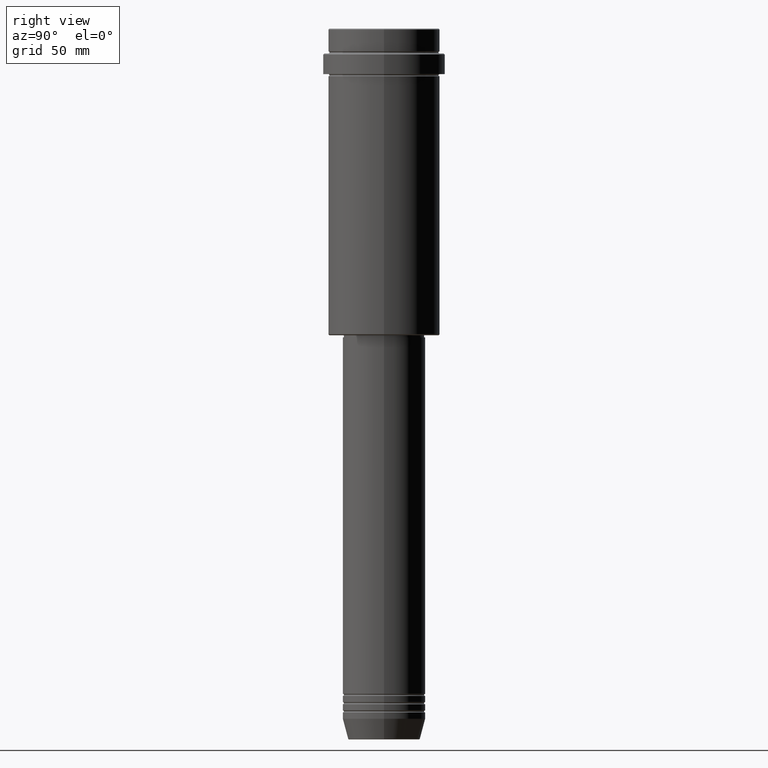
[diagram: clean part render]
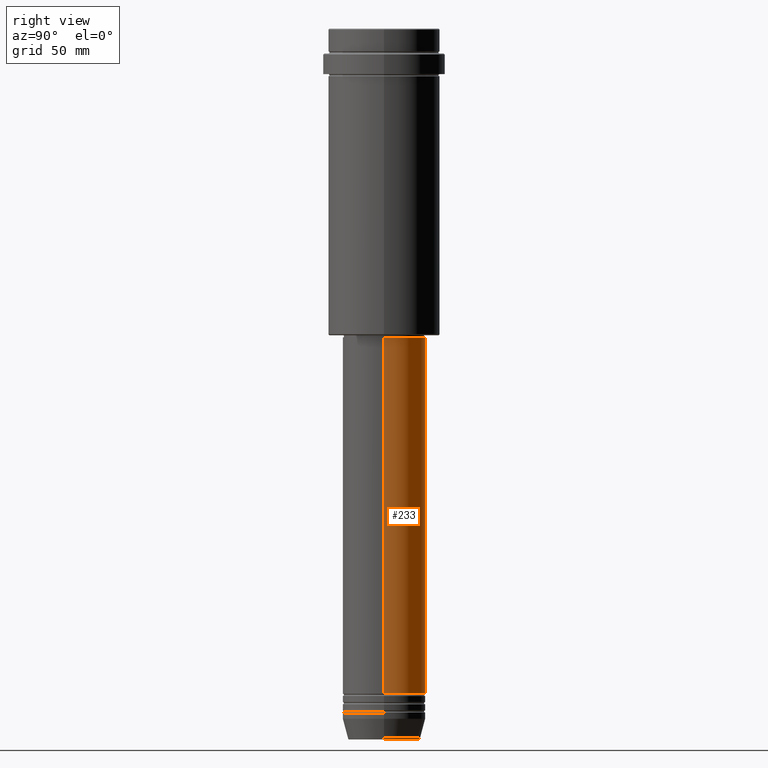
[diagram: same view with one face highlighted and labeled with its STEP entity id]
A machine part, right view. The second image highlights one B-rep face of the part: STEP entity #233.
In plain terms, the highlighted cylindrical surface (partial cylindrical patch) has radius 20 mm, axis along (-0, -0, 1).
Its self-contained STEP definition (entity closure, byte-faithful):
#58 = VERTEX_POINT ( 'NONE', #678 ) ;
#85 = FACE_OUTER_BOUND ( 'NONE', #861, .T. ) ;
#90 = VERTEX_POINT ( 'NONE', #1364 ) ;
#106 = DIRECTION ( 'NONE',  ( -0.000000000000000000, -0.000000000000000000, 1.000000000000000000 ) ) ;
#133 = VECTOR ( 'NONE', #818, 1000.000000000000000 ) ;
#219 = EDGE_CURVE ( 'NONE', #785, #748, #269, .T. ) ;
#233 = ADVANCED_FACE ( 'NONE', ( #85 ), #1296, .T. ) ;
#269 = CIRCLE ( 'NONE', #686, 20.00000000000000000 ) ;
#303 = EDGE_CURVE ( 'NONE', #58, #748, #1362, .T. ) ;
#355 = DIRECTION ( 'NONE',  ( -0.000000000000000000, -0.000000000000000000, 1.000000000000000000 ) ) ;
#397 = DIRECTION ( 'NONE',  ( -0.000000000000000000, -0.000000000000000000, 1.000000000000000000 ) ) ;
#427 = DIRECTION ( 'NONE',  ( 1.000000000000000000, 0.000000000000000000, 0.000000000000000000 ) ) ;
#449 = CARTESIAN_POINT ( 'NONE',  ( 20.00000000000000000, 0.000000000000000000, -148.9999999999999432 ) ) ;
#502 = ORIENTED_EDGE ( 'NONE', *, *, #1409, .F. ) ;
#541 = AXIS2_PLACEMENT_3D ( 'NONE', #746, #1189, #427 ) ;
#560 = CARTESIAN_POINT ( 'NONE',  ( -20.00000000000000000, 2.449293598294706513E-15, 0.000000000000000000 ) ) ;
#589 = AXIS2_PLACEMENT_3D ( 'NONE', #1143, #355, #1245 ) ;
#678 = CARTESIAN_POINT ( 'NONE',  ( -20.00000000000000000, 2.449293598294706513E-15, -320.9999999999998863 ) ) ;
#686 = AXIS2_PLACEMENT_3D ( 'NONE', #1306, #106, #852 ) ;
#693 = ORIENTED_EDGE ( 'NONE', *, *, #303, .T. ) ;
#727 = EDGE_CURVE ( 'NONE', #90, #58, #849, .T. ) ;
#746 = CARTESIAN_POINT ( 'NONE',  ( 0.000000000000000000, 0.000000000000000000, 0.000000000000000000 ) ) ;
#748 = VERTEX_POINT ( 'NONE', #1337 ) ;
#785 = VERTEX_POINT ( 'NONE', #449 ) ;
#818 = DIRECTION ( 'NONE',  ( -0.000000000000000000, -0.000000000000000000, 1.000000000000000000 ) ) ;
#849 = CIRCLE ( 'NONE', #589, 20.00000000000000000 ) ;
#852 = DIRECTION ( 'NONE',  ( 1.000000000000000000, 0.000000000000000000, 0.000000000000000000 ) ) ;
#861 = EDGE_LOOP ( 'NONE', ( #1085, #693, #1136, #502 ) ) ;
#978 = LINE ( 'NONE', #1408, #1043 ) ;
#1043 = VECTOR ( 'NONE', #397, 1000.000000000000000 ) ;
#1085 = ORIENTED_EDGE ( 'NONE', *, *, #727, .T. ) ;
#1136 = ORIENTED_EDGE ( 'NONE', *, *, #219, .F. ) ;
#1143 = CARTESIAN_POINT ( 'NONE',  ( 0.000000000000000000, 0.000000000000000000, -320.9999999999998863 ) ) ;
#1189 = DIRECTION ( 'NONE',  ( -0.000000000000000000, -0.000000000000000000, 1.000000000000000000 ) ) ;
#1245 = DIRECTION ( 'NONE',  ( 1.000000000000000000, 0.000000000000000000, 0.000000000000000000 ) ) ;
#1296 = CYLINDRICAL_SURFACE ( 'NONE', #541, 20.00000000000000000 ) ;
#1306 = CARTESIAN_POINT ( 'NONE',  ( 0.000000000000000000, 0.000000000000000000, -148.9999999999999432 ) ) ;
#1337 = CARTESIAN_POINT ( 'NONE',  ( -20.00000000000000000, 2.449293598294706513E-15, -148.9999999999999432 ) ) ;
#1362 = LINE ( 'NONE', #560, #133 ) ;
#1364 = CARTESIAN_POINT ( 'NONE',  ( 20.00000000000000000, 0.000000000000000000, -320.9999999999998863 ) ) ;
#1408 = CARTESIAN_POINT ( 'NONE',  ( 20.00000000000000000, 0.000000000000000000, 0.000000000000000000 ) ) ;
#1409 = EDGE_CURVE ( 'NONE', #90, #785, #978, .T. ) ;